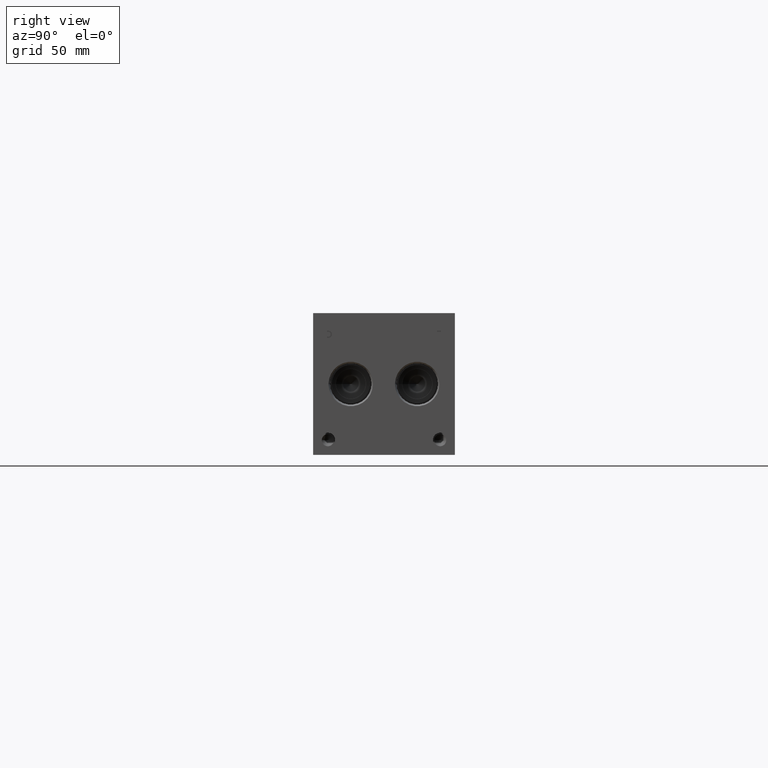
[diagram: clean part render]
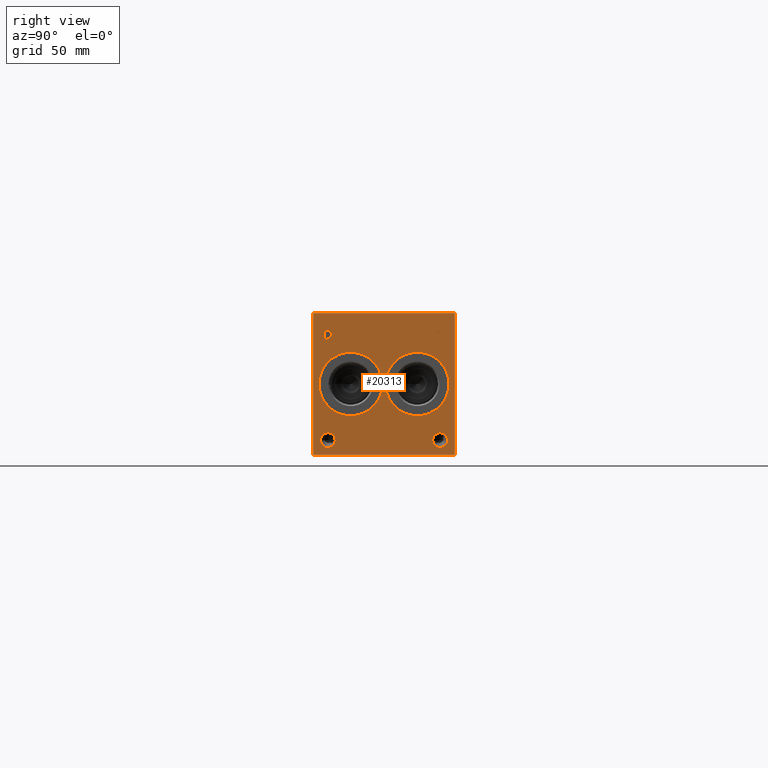
[diagram: same view with one face highlighted and labeled with its STEP entity id]
A machine part, right view. The second image highlights one B-rep face of the part: STEP entity #20313.
In plain terms, the highlighted planar face has unit normal (1, 0, 0).
Its self-contained STEP definition (entity closure, byte-faithful):
#387=CIRCLE('',#21226,17.0688);
#388=CIRCLE('',#21227,17.0688);
#389=CIRCLE('',#21228,17.0688);
#390=CIRCLE('',#21229,17.0688);
#391=CIRCLE('',#21230,3.9624);
#392=CIRCLE('',#21231,3.9624);
#393=CIRCLE('',#21232,3.9624);
#394=CIRCLE('',#21233,3.9624);
#1164=FACE_BOUND('',#3803,.T.);
#1165=FACE_BOUND('',#3804,.T.);
#1166=FACE_BOUND('',#3805,.T.);
#1167=FACE_BOUND('',#3806,.T.);
#1168=FACE_BOUND('',#3807,.T.);
#1169=FACE_BOUND('',#3808,.T.);
#1746=B_SPLINE_CURVE_WITH_KNOTS('',2,(#33603,#33604,#33605,#33606),
 .UNSPECIFIED.,.F.,.F.,(3,1,3),(0.,1.,2.),.UNSPECIFIED.);
#1748=B_SPLINE_CURVE_WITH_KNOTS('',2,(#33624,#33625,#33626,#33627),
 .UNSPECIFIED.,.F.,.F.,(3,1,3),(0.,1.,2.),.UNSPECIFIED.);
#1750=B_SPLINE_CURVE_WITH_KNOTS('',2,(#33673,#33674,#33675,#33676),
 .UNSPECIFIED.,.F.,.F.,(3,1,3),(0.,1.,2.),.UNSPECIFIED.);
#1752=B_SPLINE_CURVE_WITH_KNOTS('',2,(#33691,#33692,#33693,#33694),
 .UNSPECIFIED.,.F.,.F.,(3,1,3),(0.,1.,2.),.UNSPECIFIED.);
#2634=FACE_OUTER_BOUND('',#3802,.T.);
#3802=EDGE_LOOP('',(#16175,#16176,#16177,#16178));
#3803=EDGE_LOOP('',(#16179,#16180));
#3804=EDGE_LOOP('',(#16181,#16182));
#3805=EDGE_LOOP('',(#16183,#16184));
#3806=EDGE_LOOP('',(#16185,#16186));
#3807=EDGE_LOOP('',(#16187,#16188,#16189,#16190,#16191,#16192,#16193,#16194));
#3808=EDGE_LOOP('',(#16195,#16196,#16197,#16198,#16199,#16200,#16201,#16202,
#16203));
#4658=LINE('',#29375,#6362);
#5661=LINE('',#33636,#7365);
#5664=LINE('',#33642,#7368);
#5667=LINE('',#33648,#7371);
#5670=LINE('',#33654,#7374);
#5673=LINE('',#33660,#7377);
#5677=LINE('',#33702,#7381);
#5678=LINE('',#33704,#7382);
#5679=LINE('',#33705,#7383);
#5680=LINE('',#33724,#7384);
#5681=LINE('',#33726,#7385);
#5682=LINE('',#33728,#7386);
#5683=LINE('',#33730,#7387);
#5684=LINE('',#33732,#7388);
#5685=LINE('',#33734,#7389);
#5686=LINE('',#33736,#7390);
#5687=LINE('',#33737,#7391);
#6362=VECTOR('',#22754,10.);
#7365=VECTOR('',#24505,10.);
#7368=VECTOR('',#24510,10.);
#7371=VECTOR('',#24515,10.);
#7374=VECTOR('',#24520,10.);
#7377=VECTOR('',#24525,10.);
#7381=VECTOR('',#24533,10.);
#7382=VECTOR('',#24534,10.);
#7383=VECTOR('',#24535,10.);
#7384=VECTOR('',#24552,10.);
#7385=VECTOR('',#24553,10.);
#7386=VECTOR('',#24554,10.);
#7387=VECTOR('',#24555,10.);
#7388=VECTOR('',#24556,10.);
#7389=VECTOR('',#24557,10.);
#7390=VECTOR('',#24558,10.);
#7391=VECTOR('',#24559,10.);
#8107=VERTEX_POINT('',#29372);
#8108=VERTEX_POINT('',#29374);
#8970=VERTEX_POINT('',#33601);
#8971=VERTEX_POINT('',#33602);
#8974=VERTEX_POINT('',#33623);
#8976=VERTEX_POINT('',#33635);
#8978=VERTEX_POINT('',#33641);
#8980=VERTEX_POINT('',#33647);
#8982=VERTEX_POINT('',#33653);
#8984=VERTEX_POINT('',#33659);
#8986=VERTEX_POINT('',#33672);
#8988=VERTEX_POINT('',#33701);
#8989=VERTEX_POINT('',#33703);
#8990=VERTEX_POINT('',#33706);
#8991=VERTEX_POINT('',#33707);
#8992=VERTEX_POINT('',#33710);
#8993=VERTEX_POINT('',#33711);
#8994=VERTEX_POINT('',#33714);
#8995=VERTEX_POINT('',#33715);
#8996=VERTEX_POINT('',#33718);
#8997=VERTEX_POINT('',#33719);
#8998=VERTEX_POINT('',#33722);
#8999=VERTEX_POINT('',#33723);
#9000=VERTEX_POINT('',#33725);
#9001=VERTEX_POINT('',#33727);
#9002=VERTEX_POINT('',#33729);
#9003=VERTEX_POINT('',#33731);
#9004=VERTEX_POINT('',#33733);
#9005=VERTEX_POINT('',#33735);
#10283=EDGE_CURVE('',#8107,#8108,#4658,.T.);
#11561=EDGE_CURVE('',#8970,#8971,#1746,.T.);
#11565=EDGE_CURVE('',#8974,#8970,#1748,.T.);
#11568=EDGE_CURVE('',#8976,#8974,#5661,.T.);
#11571=EDGE_CURVE('',#8978,#8976,#5664,.T.);
#11574=EDGE_CURVE('',#8980,#8978,#5667,.T.);
#11577=EDGE_CURVE('',#8982,#8980,#5670,.T.);
#11580=EDGE_CURVE('',#8984,#8982,#5673,.T.);
#11583=EDGE_CURVE('',#8986,#8984,#1750,.T.);
#11586=EDGE_CURVE('',#8971,#8986,#1752,.T.);
#11588=EDGE_CURVE('',#8107,#8988,#5677,.T.);
#11589=EDGE_CURVE('',#8988,#8989,#5678,.T.);
#11590=EDGE_CURVE('',#8108,#8989,#5679,.T.);
#11591=EDGE_CURVE('',#8990,#8991,#387,.T.);
#11592=EDGE_CURVE('',#8991,#8990,#388,.T.);
#11593=EDGE_CURVE('',#8992,#8993,#389,.T.);
#11594=EDGE_CURVE('',#8993,#8992,#390,.T.);
#11595=EDGE_CURVE('',#8994,#8995,#391,.T.);
#11596=EDGE_CURVE('',#8995,#8994,#392,.T.);
#11597=EDGE_CURVE('',#8996,#8997,#393,.T.);
#11598=EDGE_CURVE('',#8997,#8996,#394,.T.);
#11599=EDGE_CURVE('',#8998,#8999,#5680,.T.);
#11600=EDGE_CURVE('',#8999,#9000,#5681,.T.);
#11601=EDGE_CURVE('',#9000,#9001,#5682,.T.);
#11602=EDGE_CURVE('',#9001,#9002,#5683,.T.);
#11603=EDGE_CURVE('',#9002,#9003,#5684,.T.);
#11604=EDGE_CURVE('',#9003,#9004,#5685,.T.);
#11605=EDGE_CURVE('',#9004,#9005,#5686,.T.);
#11606=EDGE_CURVE('',#9005,#8998,#5687,.T.);
#16175=ORIENTED_EDGE('',*,*,#11588,.T.);
#16176=ORIENTED_EDGE('',*,*,#11589,.T.);
#16177=ORIENTED_EDGE('',*,*,#11590,.F.);
#16178=ORIENTED_EDGE('',*,*,#10283,.F.);
#16179=ORIENTED_EDGE('',*,*,#11591,.T.);
#16180=ORIENTED_EDGE('',*,*,#11592,.T.);
#16181=ORIENTED_EDGE('',*,*,#11593,.T.);
#16182=ORIENTED_EDGE('',*,*,#11594,.T.);
#16183=ORIENTED_EDGE('',*,*,#11595,.T.);
#16184=ORIENTED_EDGE('',*,*,#11596,.T.);
#16185=ORIENTED_EDGE('',*,*,#11597,.T.);
#16186=ORIENTED_EDGE('',*,*,#11598,.T.);
#16187=ORIENTED_EDGE('',*,*,#11599,.T.);
#16188=ORIENTED_EDGE('',*,*,#11600,.T.);
#16189=ORIENTED_EDGE('',*,*,#11601,.T.);
#16190=ORIENTED_EDGE('',*,*,#11602,.T.);
#16191=ORIENTED_EDGE('',*,*,#11603,.T.);
#16192=ORIENTED_EDGE('',*,*,#11604,.T.);
#16193=ORIENTED_EDGE('',*,*,#11605,.T.);
#16194=ORIENTED_EDGE('',*,*,#11606,.T.);
#16195=ORIENTED_EDGE('',*,*,#11561,.T.);
#16196=ORIENTED_EDGE('',*,*,#11586,.T.);
#16197=ORIENTED_EDGE('',*,*,#11583,.T.);
#16198=ORIENTED_EDGE('',*,*,#11580,.T.);
#16199=ORIENTED_EDGE('',*,*,#11577,.T.);
#16200=ORIENTED_EDGE('',*,*,#11574,.T.);
#16201=ORIENTED_EDGE('',*,*,#11571,.T.);
#16202=ORIENTED_EDGE('',*,*,#11568,.T.);
#16203=ORIENTED_EDGE('',*,*,#11565,.T.);
#18932=PLANE('',#21225);
#20313=ADVANCED_FACE('',(#2634,#1164,#1165,#1166,#1167,#1168,#1169),#18932,
 .T.);
#21225=AXIS2_PLACEMENT_3D('',#33700,#24531,#24532);
#21226=AXIS2_PLACEMENT_3D('',#33708,#24536,#24537);
#21227=AXIS2_PLACEMENT_3D('',#33709,#24538,#24539);
#21228=AXIS2_PLACEMENT_3D('',#33712,#24540,#24541);
#21229=AXIS2_PLACEMENT_3D('',#33713,#24542,#24543);
#21230=AXIS2_PLACEMENT_3D('',#33716,#24544,#24545);
#21231=AXIS2_PLACEMENT_3D('',#33717,#24546,#24547);
#21232=AXIS2_PLACEMENT_3D('',#33720,#24548,#24549);
#21233=AXIS2_PLACEMENT_3D('',#33721,#24550,#24551);
#22754=DIRECTION('',(0.,0.,1.));
#24505=DIRECTION('',(0.,1.,0.));
#24510=DIRECTION('',(0.,0.,1.));
#24515=DIRECTION('',(0.,-1.,0.));
#24520=DIRECTION('',(0.,0.,-1.));
#24525=DIRECTION('',(0.,-1.,0.));
#24531=DIRECTION('center_axis',(1.,0.,0.));
#24532=DIRECTION('ref_axis',(0.,1.,0.));
#24533=DIRECTION('',(0.,1.,0.));
#24534=DIRECTION('',(0.,0.,1.));
#24535=DIRECTION('',(0.,1.,0.));
#24536=DIRECTION('center_axis',(-1.,0.,0.));
#24537=DIRECTION('ref_axis',(0.,1.,0.));
#24538=DIRECTION('center_axis',(-1.,0.,0.));
#24539=DIRECTION('ref_axis',(0.,1.,0.));
#24540=DIRECTION('center_axis',(-1.,0.,0.));
#24541=DIRECTION('ref_axis',(0.,1.,0.));
#24542=DIRECTION('center_axis',(-1.,0.,0.));
#24543=DIRECTION('ref_axis',(0.,1.,0.));
#24544=DIRECTION('center_axis',(-1.,0.,0.));
#24545=DIRECTION('ref_axis',(0.,1.,0.));
#24546=DIRECTION('center_axis',(-1.,0.,0.));
#24547=DIRECTION('ref_axis',(0.,1.,0.));
#24548=DIRECTION('center_axis',(-1.,0.,0.));
#24549=DIRECTION('ref_axis',(0.,1.,0.));
#24550=DIRECTION('center_axis',(-1.,0.,0.));
#24551=DIRECTION('ref_axis',(0.,1.,0.));
#24552=DIRECTION('',(0.,-1.,0.));
#24553=DIRECTION('',(0.,0.,1.));
#24554=DIRECTION('',(0.,-1.,0.));
#24555=DIRECTION('',(0.,0.,1.));
#24556=DIRECTION('',(0.,1.,0.));
#24557=DIRECTION('',(0.,0.,-1.));
#24558=DIRECTION('',(0.,-1.,0.));
#24559=DIRECTION('',(0.,0.,-1.));
#29372=CARTESIAN_POINT('',(377.825,0.,0.));
#29374=CARTESIAN_POINT('',(377.825,0.,76.2));
#29375=CARTESIAN_POINT('',(377.825,0.,0.));
#33601=CARTESIAN_POINT('',(377.825,9.45681720235939,66.2787681439707));
#33602=CARTESIAN_POINT('',(377.825,10.213259654532,64.760737372604));
#33603=CARTESIAN_POINT('Ctrl Pts',(377.825,9.45681720235939,66.2787681439707));
#33604=CARTESIAN_POINT('Ctrl Pts',(377.825,9.81188202684857,66.0369123939564));
#33605=CARTESIAN_POINT('Ctrl Pts',(377.825,10.213259654532,65.2907616758269));
#33606=CARTESIAN_POINT('Ctrl Pts',(377.825,10.213259654532,64.760737372604));
#33623=CARTESIAN_POINT('',(377.825,7.7947021543883,66.6749999046326));
#33624=CARTESIAN_POINT('Ctrl Pts',(377.825,7.7947021543883,66.6749999046326));
#33625=CARTESIAN_POINT('Ctrl Pts',(377.825,8.36074752676236,66.6749999046326));
#33626=CARTESIAN_POINT('Ctrl Pts',(377.825,9.15321104808603,66.4897486918556));
#33627=CARTESIAN_POINT('Ctrl Pts',(377.825,9.45681720235939,66.2787681439707));
#33635=CARTESIAN_POINT('',(377.825,6.19948337769779,66.6749999046326));
#33636=CARTESIAN_POINT('',(377.825,3.09974168884889,66.6749999046326));
#33641=CARTESIAN_POINT('',(377.825,6.19948337769779,60.325));
#33642=CARTESIAN_POINT('',(377.825,6.19948337769779,30.1625));
#33647=CARTESIAN_POINT('',(377.825,7.04340556923729,60.325));
#33648=CARTESIAN_POINT('',(377.825,3.52170278461864,60.325));
#33653=CARTESIAN_POINT('',(377.825,7.04340556923729,62.6920988299279));
#33654=CARTESIAN_POINT('',(377.825,7.04340556923729,31.3460494149639));
#33659=CARTESIAN_POINT('',(377.825,7.75868108523723,62.6920988299279));
#33660=CARTESIAN_POINT('',(377.825,3.87934054261861,62.6920988299279));
#33672=CARTESIAN_POINT('',(377.825,9.6575060162011,63.3507698086904));
#33673=CARTESIAN_POINT('Ctrl Pts',(377.825,9.6575060162011,63.3507698086904));
#33674=CARTESIAN_POINT('Ctrl Pts',(377.825,9.32817052681983,63.0265801863307));
#33675=CARTESIAN_POINT('Ctrl Pts',(377.825,8.43793553208609,62.6920988299279));
#33676=CARTESIAN_POINT('Ctrl Pts',(377.825,7.75868108523723,62.6920988299279));
#33691=CARTESIAN_POINT('Ctrl Pts',(377.825,10.213259654532,64.760737372604));
#33692=CARTESIAN_POINT('Ctrl Pts',(377.825,10.213259654532,64.3490680108774));
#33693=CARTESIAN_POINT('Ctrl Pts',(377.825,9.9199452343018,63.6080631597695));
#33694=CARTESIAN_POINT('Ctrl Pts',(377.825,9.6575060162011,63.3507698086904));
#33700=CARTESIAN_POINT('Origin',(377.825,0.,0.));
#33701=CARTESIAN_POINT('',(377.825,76.2,0.));
#33702=CARTESIAN_POINT('',(377.825,0.,0.));
#33703=CARTESIAN_POINT('',(377.825,76.2,76.2));
#33704=CARTESIAN_POINT('',(377.825,76.2,0.));
#33705=CARTESIAN_POINT('',(377.825,0.,76.2));
#33706=CARTESIAN_POINT('',(377.825,37.3126,38.1));
#33707=CARTESIAN_POINT('',(377.825,3.175,38.1));
#33708=CARTESIAN_POINT('Origin',(377.825,20.2438,38.1));
#33709=CARTESIAN_POINT('Origin',(377.825,20.2438,38.1));
#33710=CARTESIAN_POINT('',(377.825,73.025,38.1));
#33711=CARTESIAN_POINT('',(377.825,38.8874,38.1));
#33712=CARTESIAN_POINT('Origin',(377.825,55.9562,38.1));
#33713=CARTESIAN_POINT('Origin',(377.825,55.9562,38.1));
#33714=CARTESIAN_POINT('',(377.825,11.8872,7.9248));
#33715=CARTESIAN_POINT('',(377.825,3.9624,7.9248));
#33716=CARTESIAN_POINT('Origin',(377.825,7.9248,7.9248));
#33717=CARTESIAN_POINT('Origin',(377.825,7.9248,7.9248));
#33718=CARTESIAN_POINT('',(377.825,72.2376,7.9248));
#33719=CARTESIAN_POINT('',(377.825,64.3128,7.9248));
#33720=CARTESIAN_POINT('Origin',(377.825,68.2752,7.9248));
#33721=CARTESIAN_POINT('Origin',(377.825,68.2752,7.9248));
#33722=CARTESIAN_POINT('',(377.825,69.644165271453,60.325));
#33723=CARTESIAN_POINT('',(377.825,68.8002430799135,60.325));
#33724=CARTESIAN_POINT('',(377.825,34.8220826357265,60.325));
#33725=CARTESIAN_POINT('',(377.825,68.8002430799135,65.9237033194816));
#33726=CARTESIAN_POINT('',(377.825,68.8002430799135,30.1625));
#33727=CARTESIAN_POINT('',(377.825,66.6698541329784,65.9237033194816));
#33728=CARTESIAN_POINT('',(377.825,34.4001215399567,65.9237033194816));
#33729=CARTESIAN_POINT('',(377.825,66.6698541329784,66.6749999046326));
#33730=CARTESIAN_POINT('',(377.825,66.6698541329784,32.9618516597408));
#33731=CARTESIAN_POINT('',(377.825,71.7745542183881,66.6749999046326));
#33732=CARTESIAN_POINT('',(377.825,33.3349270664892,66.6749999046326));
#33733=CARTESIAN_POINT('',(377.825,71.7745542183881,65.9237033194816));
#33734=CARTESIAN_POINT('',(377.825,71.7745542183881,33.3374999523163));
#33735=CARTESIAN_POINT('',(377.825,69.644165271453,65.9237033194816));
#33736=CARTESIAN_POINT('',(377.825,35.887277109194,65.9237033194816));
#33737=CARTESIAN_POINT('',(377.825,69.644165271453,32.9618516597408));